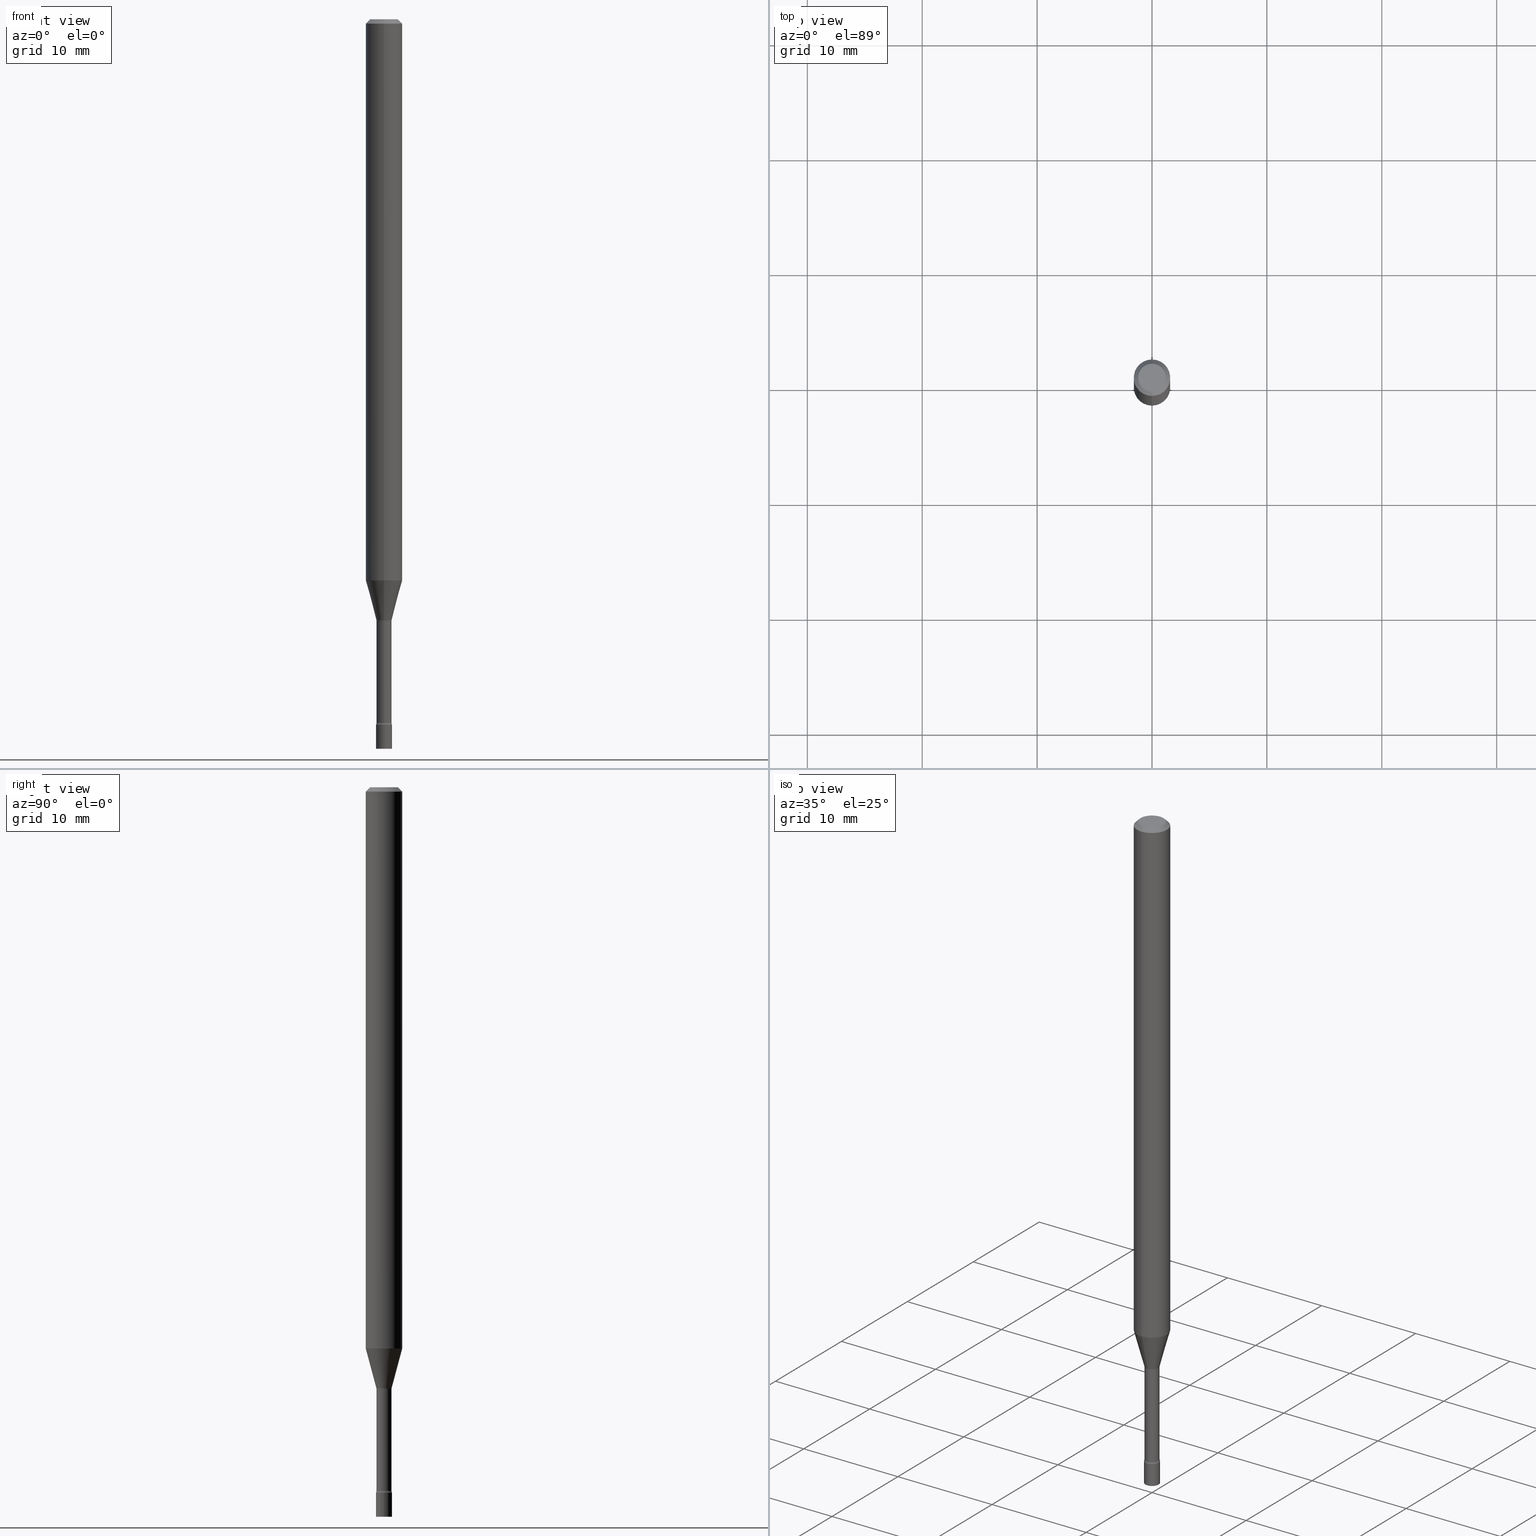
[diagram: canonical four-view strip — front | top / right | iso, engineering-drawing reading convention]
A machine part, canonical four-view strip (front | top / right | iso — engineering-drawing reading convention). The complete STEP part file that produces these views, byte-faithful:
ISO-10303-21;
HEADER;
FILE_DESCRIPTION (( 'STEP AP203' ),
    '1' );
FILE_NAME ('03573.STEP',
    '2024-03-08T21:53:19',
    ( '' ),
    ( '' ),
    'SwSTEP 2.0',
    'SolidWorks 2023',
    '' );
FILE_SCHEMA (( 'CONFIG_CONTROL_DESIGN' ));
ENDSEC;

DATA;
#1 = DESIGN_CONTEXT ( 'detailed design', #435, 'design' ) ;
#2 = CIRCLE ( 'NONE', #287, 0.06250000000000000000 ) ;
#3 = DIRECTION ( 'NONE',  ( -2.445418385667774846E-29, 3.491553543893765226E-15, 1.000000000000000000 ) ) ;
#4 = DATE_AND_TIME ( #207, #485 ) ;
#5 = CARTESIAN_POINT ( 'NONE',  ( 5.042495021882977278E-29, -7.199346491594957995E-15, -2.061974787463811243 ) ) ;
#6 = PERSON_AND_ORGANIZATION ( #206, #320 ) ;
#7 = CARTESIAN_POINT ( 'NONE',  ( -1.840786654675862271E-16, -0.02636111260567116504, -2.058092501787273321 ) ) ;
#8 = ORIENTED_EDGE ( 'NONE', *, *, #127, .T. ) ;
#9 =( GEOMETRIC_REPRESENTATION_CONTEXT ( 3 ) GLOBAL_UNCERTAINTY_ASSIGNED_CONTEXT ( ( #447 ) ) GLOBAL_UNIT_ASSIGNED_CONTEXT ( ( #282, #158, #119 ) ) REPRESENTATION_CONTEXT ( 'NONE', 'WORKASPACE' ) );
#10 = ADVANCED_FACE ( 'NONE', ( #391 ), #514, .F. ) ;
#11 = CARTESIAN_POINT ( 'NONE',  ( 5.042391056047406108E-29, -7.199495376588862482E-15, -2.061974787463811243 ) ) ;
#12 = VERTEX_POINT ( 'NONE', #313 ) ;
#13 = LINE ( 'NONE', #208, #419 ) ;
#14 = EDGE_LOOP ( 'NONE', ( #32, #369, #352, #139 ) ) ;
#15 = DIRECTION ( 'NONE',  ( -2.445468806185136877E-29, 3.491481338843145188E-15, 1.000000000000000000 ) ) ;
#16 = ORIENTED_EDGE ( 'NONE', *, *, #465, .F. ) ;
#17 = VECTOR ( 'NONE', #219, 39.37007874015748143 ) ;
#18 = CIRCLE ( 'NONE', #124, 0.06250000000000000000 ) ;
#19 = FACE_OUTER_BOUND ( 'NONE', #496, .T. ) ;
#20 = ORIENTED_EDGE ( 'NONE', *, *, #81, .T. ) ;
#21 = CARTESIAN_POINT ( 'NONE',  ( 0.000000000000000000, 0.000000000000000000, 0.000000000000000000 ) ) ;
#22 = VERTEX_POINT ( 'NONE', #192 ) ;
#23 = CYLINDRICAL_SURFACE ( 'NONE', #305, 0.02750000000000000014 ) ;
#24 = VERTEX_POINT ( 'NONE', #479 ) ;
#25 = MANIFOLD_SOLID_BREP ( 'Body-Move/Copy2[2]', #442 ) ;
#26 = AXIS2_PLACEMENT_3D ( 'NONE', #399, #406, #243 ) ;
#27 = CC_DESIGN_DATE_AND_TIME_ASSIGNMENT ( #327, #177, ( #125 ) ) ;
#28 = DIRECTION ( 'NONE',  ( -6.982962677686265922E-15, -1.000000000000000000, 3.491553543893765620E-15 ) ) ;
#29 = ORIENTED_EDGE ( 'NONE', *, *, #389, .F. ) ;
#30 = AXIS2_PLACEMENT_3D ( 'NONE', #132, #55, #288 ) ;
#31 = LINE ( 'NONE', #394, #103 ) ;
#32 = ORIENTED_EDGE ( 'NONE', *, *, #321, .F. ) ;
#33 = DIRECTION ( 'NONE',  ( -2.445418385667774846E-29, 3.491553543893765226E-15, 1.000000000000000000 ) ) ;
#34 = ORIENTED_EDGE ( 'NONE', *, *, #248, .F. ) ;
#35 = EDGE_CURVE ( 'NONE', #137, #108, #146, .T. ) ;
#36 = DIRECTION ( 'NONE',  ( -6.982962677686266711E-15, -1.000000000000000000, 0.000000000000000000 ) ) ;
#37 = CONICAL_SURFACE ( 'NONE', #328, 0.06250000000000000000, 0.7853981633974483900 ) ;
#38 = CARTESIAN_POINT ( 'NONE',  ( 0.000000000000000000, 0.000000000000000000, 0.000000000000000000 ) ) ;
#39 = DIRECTION ( 'NONE',  ( 6.982962677686265922E-15, 1.000000000000000000, -3.483106191921935554E-15 ) ) ;
#40 = ADVANCED_FACE ( 'NONE', ( #302 ), #84, .T. ) ;
#41 = DIRECTION ( 'NONE',  ( -2.445418385667774846E-29, 3.491553543893765226E-15, 1.000000000000000000 ) ) ;
#42 = DIRECTION ( 'NONE',  ( -2.445418385667774846E-29, 3.491553543893765226E-15, 1.000000000000000000 ) ) ;
#43 = DATE_AND_TIME ( #50, #315 ) ;
#44 = ADVANCED_FACE ( 'NONE', ( #426 ), #512, .F. ) ;
#45 = DIRECTION ( 'NONE',  ( -6.982962677686266711E-15, -1.000000000000000000, 0.000000000000000000 ) ) ;
#46 = AXIS2_PLACEMENT_3D ( 'NONE', #21, #189, #272 ) ;
#47 = CC_DESIGN_APPROVAL ( #274, ( #93 ) ) ;
#48 = DIMENSIONAL_EXPONENTS ( 1.000000000000000000, 0.000000000000000000, 0.000000000000000000, 0.000000000000000000, 0.000000000000000000, 0.000000000000000000, 0.000000000000000000 ) ;
#49 = DIRECTION ( 'NONE',  ( -6.982962677686265922E-15, -1.000000000000000000, 0.000000000000000000 ) ) ;
#50 = CALENDAR_DATE ( 2024, 8, 3 ) ;
#51 = DIRECTION ( 'NONE',  ( -6.982962677686265922E-15, -1.000000000000000000, 3.491553543893765620E-15 ) ) ;
#52 = DIRECTION ( 'NONE',  ( -2.445418385667774846E-29, 3.491553543893765226E-15, 1.000000000000000000 ) ) ;
#53 = VERTEX_POINT ( 'NONE', #87 ) ;
#54 = ADVANCED_FACE ( 'NONE', ( #306 ), #460, .T. ) ;
#55 = DIRECTION ( 'NONE',  ( 1.000000000000000000, -7.105427357601001070E-15, 4.926316392798923836E-29 ) ) ;
#56 = ORIENTED_EDGE ( 'NONE', *, *, #515, .T. ) ;
#57 = AXIS2_PLACEMENT_3D ( 'NONE', #88, #363, #91 ) ;
#58 = EDGE_CURVE ( 'NONE', #159, #436, #410, .T. ) ;
#59 = CIRCLE ( 'NONE', #26, 0.02585000000000002227 ) ;
#60 = COORDINATED_UNIVERSAL_TIME_OFFSET ( 5, 0, .BEHIND. ) ;
#61 = CARTESIAN_POINT ( 'NONE',  ( 1.920314736364334811E-16, 0.02749999999999127101, -2.500000000000000000 ) ) ;
#62 = ORIENTED_EDGE ( 'NONE', *, *, #321, .T. ) ;
#63 = CARTESIAN_POINT ( 'NONE',  ( 5.032897243275585595E-29, -7.185940168276538643E-15, -2.058092501787273321 ) ) ;
#64 = EDGE_LOOP ( 'NONE', ( #294, #376, #181, #511 ) ) ;
#65 = LINE ( 'NONE', #505, #383 ) ;
#66 = ADVANCED_FACE ( 'NONE', ( #283 ), #407, .T. ) ;
#67 = AXIS2_PLACEMENT_3D ( 'NONE', #513, #264, #461 ) ;
#68 = AXIS2_PLACEMENT_3D ( 'NONE', #518, #279, #200 ) ;
#69 = PLANE ( 'NONE',  #239 ) ;
#70 = CARTESIAN_POINT ( 'NONE',  ( 3.316907271900976096E-16, 0.04749999999999999362, -1.803040339289361158E-16 ) ) ;
#71 = EDGE_CURVE ( 'NONE', #137, #179, #281, .T. ) ;
#72 = DIRECTION ( 'NONE',  ( 1.000000000000000000, -6.982962677686265922E-15, 4.876176775795935793E-29 ) ) ;
#73 = DIRECTION ( 'NONE',  ( -6.982962677686265922E-15, -1.000000000000000000, 0.000000000000000000 ) ) ;
#74 = ADVANCED_FACE ( 'NONE', ( #487 ), #247, .F. ) ;
#75 = CARTESIAN_POINT ( 'NONE',  ( 5.893972545952798109E-29, -8.415030731040159309E-15, -2.410160592130893509 ) ) ;
#76 = VERTEX_POINT ( 'NONE', #501 ) ;
#77 = CARTESIAN_POINT ( 'NONE',  ( 5.910698104549475684E-29, -8.438910395983882728E-15, -2.417000000000000259 ) ) ;
#78 = ORIENTED_EDGE ( 'NONE', *, *, #500, .F. ) ;
#79 = CIRCLE ( 'NONE', #67, 0.02750000000000000014 ) ;
#80 = ORIENTED_EDGE ( 'NONE', *, *, #147, .T. ) ;
#81 = EDGE_CURVE ( 'NONE', #108, #22, #193, .T. ) ;
#82 = DIRECTION ( 'NONE',  ( 1.000000000000000000, -6.982962677686279332E-15, 0.000000000000000000 ) ) ;
#83 = DIRECTION ( 'NONE',  ( -6.982962677686266711E-15, -1.000000000000000000, 3.491553543893765226E-15 ) ) ;
#84 = CONICAL_SURFACE ( 'NONE', #481, 0.02636111260566398329, 0.2617993877991496854 ) ;
#85 = APPROVAL_PERSON_ORGANIZATION ( #134, #212, #246 ) ;
#86 = CARTESIAN_POINT ( 'NONE',  ( 4.440892098500625669E-16, 0.06250000000000000000, -2.182220964933603019E-16 ) ) ;
#87 = CARTESIAN_POINT ( 'NONE',  ( 3.156980902676227691E-16, 0.02636111260565679806, -2.058092501787273321 ) ) ;
#88 = CARTESIAN_POINT ( 'NONE',  ( -2.852540253834252668E-16, -0.04085000000000845594, -2.410160592130893065 ) ) ;
#89 = ADVANCED_FACE ( 'NONE', ( #325 ), #232, .F. ) ;
#90 = PERSON_AND_ORGANIZATION_ROLE ( 'classification_officer' ) ;
#91 = DIRECTION ( 'NONE',  ( -6.982962677686267499E-15, -1.000000000000000000, 0.000000000000000000 ) ) ;
#92 = CONICAL_SURFACE ( 'NONE', #297, 0.02636111260566398329, 0.2617993877991496854 ) ;
#93 = PRODUCT_DEFINITION_FORMATION_WITH_SPECIFIED_SOURCE ( 'ANY', '', #120, .NOT_KNOWN. ) ;
#94 = APPROVAL_ROLE ( '' ) ;
#95 = ORIENTED_EDGE ( 'NONE', *, *, #147, .F. ) ;
#96 = ADVANCED_FACE ( 'NONE', ( #495 ), #253, .T. ) ;
#97 = CALENDAR_DATE ( 2024, 8, 3 ) ;
#98 = CARTESIAN_POINT ( 'NONE',  ( 7.069822223555091707E-46, -1.009424930475117425E-31, -2.891048118796457995E-17 ) ) ;
#99 = ORIENTED_EDGE ( 'NONE', *, *, #446, .F. ) ;
#100 = DATE_TIME_ROLE ( 'classification_date' ) ;
#101 = DIRECTION ( 'NONE',  ( -2.445418385667774846E-29, 3.491553543893765226E-15, 1.000000000000000000 ) ) ;
#102 = ORIENTED_EDGE ( 'NONE', *, *, #227, .T. ) ;
#103 = VECTOR ( 'NONE', #162, 39.37007874015748854 ) ;
#104 = DIRECTION ( 'NONE',  ( -1.000000000000000000, 6.982962677686265922E-15, -4.876176775795935793E-29 ) ) ;
#105 = DIRECTION ( 'NONE',  ( -2.445418385667774846E-29, 3.491553543893765226E-15, 1.000000000000000000 ) ) ;
#106 = ORIENTED_EDGE ( 'NONE', *, *, #519, .F. ) ;
#107 = CARTESIAN_POINT ( 'NONE',  ( 6.113672015462842613E-29, -8.728703347107864943E-15, -2.500000000000000000 ) ) ;
#108 = VERTEX_POINT ( 'NONE', #140 ) ;
#109 = AXIS2_PLACEMENT_3D ( 'NONE', #455, #180, #285 ) ;
#110 = LOCAL_TIME ( 16, 53, 19.00000000000000000, #252 ) ;
#111 = DIRECTION ( 'NONE',  ( 1.000000000000000000, -6.982962677686244622E-15, 0.000000000000000000 ) ) ;
#112 = ORIENTED_EDGE ( 'NONE', *, *, #155, .F. ) ;
#113 = ORIENTED_EDGE ( 'NONE', *, *, #71, .F. ) ;
#114 = ORIENTED_EDGE ( 'NONE', *, *, #202, .T. ) ;
#115 = CARTESIAN_POINT ( 'NONE',  ( 5.032897243275585595E-29, -7.185940168276538643E-15, -2.058092501787273321 ) ) ;
#116 = CARTESIAN_POINT ( 'NONE',  ( -1.805095852181900511E-16, -0.02585000000000001186, 9.025665910965387354E-17 ) ) ;
#117 = AXIS2_PLACEMENT_3D ( 'NONE', #77, #318, #82 ) ;
#118 = PRODUCT_RELATED_PRODUCT_CATEGORY ( 'detail', '', ( #120 ) ) ;
#119 =( NAMED_UNIT ( * ) SI_UNIT ( $, .STERADIAN. ) SOLID_ANGLE_UNIT ( ) );
#120 = PRODUCT ( '03573', '03573', '', ( #360 ) ) ;
#121 = DIRECTION ( 'NONE',  ( -2.445418385667774846E-29, 3.491553543893765226E-15, 1.000000000000000000 ) ) ;
#122 = LENGTH_MEASURE_WITH_UNIT ( LENGTH_MEASURE( 0.02539999999999999897 ), #280 );
#123 = CIRCLE ( 'NONE', #502, 0.02636111260566398329 ) ;
#124 = AXIS2_PLACEMENT_3D ( 'NONE', #354, #41, #356 ) ;
#125 = PRODUCT_DEFINITION ( 'UNKNOWN', '', #93, #1 ) ;
#126 = APPROVAL_DATE_TIME ( #416, #274 ) ;
#127 = EDGE_CURVE ( 'NONE', #53, #223, #123, .T. ) ;
#128 = COORDINATED_UNIVERSAL_TIME_OFFSET ( 5, 0, .BEHIND. ) ;
#129 = FACE_OUTER_BOUND ( 'NONE', #343, .T. ) ;
#130 = EDGE_CURVE ( 'NONE', #137, #235, #470, .T. ) ;
#131 = SECURITY_CLASSIFICATION_LEVEL ( 'unclassified' ) ;
#132 = CARTESIAN_POINT ( 'NONE',  ( 2.902567075580512468E-16, 0.04084999999999280179, -2.061974787463811243 ) ) ;
#133 = CIRCLE ( 'NONE', #427, 0.06250000000000000000 ) ;
#134 = PERSON_AND_ORGANIZATION ( #206, #320 ) ;
#135 = ADVANCED_FACE ( 'NONE', ( #129 ), #37, .T. ) ;
#136 = CARTESIAN_POINT ( 'NONE',  ( -1.805095852181311823E-16, -0.02585000000000843567, -2.410160592130893509 ) ) ;
#137 = VERTEX_POINT ( 'NONE', #136 ) ;
#138 = CARTESIAN_POINT ( 'NONE',  ( -4.364351673553447815E-16, -0.06250000000000673073, -1.923220337902600718 ) ) ;
#139 = ORIENTED_EDGE ( 'NONE', *, *, #428, .F. ) ;
#140 = CARTESIAN_POINT ( 'NONE',  ( -1.805095852181395393E-16, -0.02585000000000720402, -2.061974787463811243 ) ) ;
#141 = CC_DESIGN_PERSON_AND_ORGANIZATION_ASSIGNMENT ( #364, #413, ( #93 ) ) ;
#142 = AXIS2_PLACEMENT_3D ( 'NONE', #472, #396, #39 ) ;
#143 = AXIS2_PLACEMENT_3D ( 'NONE', #347, #510, #307 ) ;
#144 = CARTESIAN_POINT ( 'NONE',  ( 1.836752971939859576E-16, 0.02585000000000001186, -9.025665910965387354E-17 ) ) ;
#145 = CYLINDRICAL_SURFACE ( 'NONE', #164, 0.02750000000000000014 ) ;
#146 = LINE ( 'NONE', #116, #150 ) ;
#147 = EDGE_CURVE ( 'NONE', #12, #235, #349, .T. ) ;
#148 = FACE_OUTER_BOUND ( 'NONE', #14, .T. ) ;
#149 = ORIENTED_EDGE ( 'NONE', *, *, #386, .T. ) ;
#150 = VECTOR ( 'NONE', #278, 39.37007874015748143 ) ;
#151 = AXIS2_PLACEMENT_3D ( 'NONE', #449, #420, #45 ) ;
#152 = CC_DESIGN_APPROVAL ( #212, ( #176 ) ) ;
#153 = CARTESIAN_POINT ( 'NONE',  ( 0.02750000000000000014, -1.920314736363723444E-16, 1.340948613343882413E-30 ) ) ;
#154 = VERTEX_POINT ( 'NONE', #414 ) ;
#155 = EDGE_CURVE ( 'NONE', #157, #273, #13, .T. ) ;
#156 = CARTESIAN_POINT ( 'NONE',  ( 0.000000000000000000, 0.000000000000000000, 0.000000000000000000 ) ) ;
#157 = VERTEX_POINT ( 'NONE', #138 ) ;
#158 =( NAMED_UNIT ( * ) PLANE_ANGLE_UNIT ( ) SI_UNIT ( $, .RADIAN. ) );
#159 = VERTEX_POINT ( 'NONE', #290 ) ;
#160 = EDGE_CURVE ( 'NONE', #273, #388, #133, .T. ) ;
#161 = AXIS2_PLACEMENT_3D ( 'NONE', #70, #308, #430 ) ;
#162 = DIRECTION ( 'NONE',  ( -1.807323732225326195E-15, -0.2588190451025176309, 0.9659258262890690894 ) ) ;
#163 = CARTESIAN_POINT ( 'NONE',  ( -4.287811248607203282E-16, -0.06250000000000005551, -0.01499999999999981209 ) ) ;
#164 = AXIS2_PLACEMENT_3D ( 'NONE', #156, #220, #463 ) ;
#165 = EDGE_CURVE ( 'NONE', #223, #108, #492, .T. ) ;
#166 = AXIS2_PLACEMENT_3D ( 'NONE', #38, #440, #475 ) ;
#167 = PRODUCT_DEFINITION_SHAPE ( 'NONE', 'NONE',  #125 ) ;
#168 = CARTESIAN_POINT ( 'NONE',  ( 3.668127578501669485E-31, -5.237330315840658710E-17, -0.01500000000000003067 ) ) ;
#169 = ADVANCED_BREP_SHAPE_REPRESENTATION ( '03573', ( #377, #25, #68 ), #9 ) ;
#170 = CARTESIAN_POINT ( 'NONE',  ( 0.000000000000000000, 0.000000000000000000, 0.000000000000000000 ) ) ;
#171 = EDGE_CURVE ( 'NONE', #53, #216, #335, .T. ) ;
#172 = CALENDAR_DATE ( 2024, 8, 3 ) ;
#173 = DIRECTION ( 'NONE',  ( 2.445418385667774846E-29, -3.491553543893765226E-15, -1.000000000000000000 ) ) ;
#174 = ORIENTED_EDGE ( 'NONE', *, *, #188, .F. ) ;
#175 = AXIS2_PLACEMENT_3D ( 'NONE', #98, #256, #293 ) ;
#176 = SECURITY_CLASSIFICATION ( '', '', #131 ) ;
#177 = DATE_TIME_ROLE ( 'creation_date' ) ;
#178 = CARTESIAN_POINT ( 'NONE',  ( 4.703078373997210395E-29, -6.715026786492391086E-15, -1.923220337902600940 ) ) ;
#179 = VERTEX_POINT ( 'NONE', #365 ) ;
#180 = DIRECTION ( 'NONE',  ( -1.000000000000000000, 6.982962677686265922E-15, -4.883557194083112340E-29 ) ) ;
#181 = ORIENTED_EDGE ( 'NONE', *, *, #81, .F. ) ;
#182 = DIRECTION ( 'NONE',  ( -2.445468806185136877E-29, 3.491481338843145188E-15, 1.000000000000000000 ) ) ;
#183 = ORIENTED_EDGE ( 'NONE', *, *, #500, .T. ) ;
#184 = CIRCLE ( 'NONE', #175, 0.04749999999999999362 ) ;
#185 = AXIS2_PLACEMENT_3D ( 'NONE', #317, #240, #234 ) ;
#186 = FACE_OUTER_BOUND ( 'NONE', #214, .T. ) ;
#187 = EDGE_LOOP ( 'NONE', ( #517, #254, #395, #183 ) ) ;
#188 = EDGE_CURVE ( 'NONE', #157, #216, #2, .T. ) ;
#189 = DIRECTION ( 'NONE',  ( -2.445418385667774846E-29, 3.491553543893765226E-15, 1.000000000000000000 ) ) ;
#190 = EDGE_LOOP ( 'NONE', ( #491, #29 ) ) ;
#191 = CARTESIAN_POINT ( 'NONE',  ( 4.440892098501099478E-16, 0.06249999999999995143, -0.01500000000000024751 ) ) ;
#192 = CARTESIAN_POINT ( 'NONE',  ( 1.836752971940449250E-16, 0.02584999999999280235, -2.061974787463811243 ) ) ;
#193 = CIRCLE ( 'NONE', #484, 0.02585000000000000492 ) ;
#194 = AXIS2_PLACEMENT_3D ( 'NONE', #437, #478, #237 ) ;
#195 = DIRECTION ( 'NONE',  ( -2.445468806185136597E-29, 3.491481338843145583E-15, 1.000000000000000000 ) ) ;
#196 = EDGE_LOOP ( 'NONE', ( #236, #113, #338, #504 ) ) ;
#197 = LINE ( 'NONE', #163, #471 ) ;
#198 = ORIENTED_EDGE ( 'NONE', *, *, #58, .T. ) ;
#199 = DIRECTION ( 'NONE',  ( -6.982962677686265133E-15, -1.000000000000000000, 0.000000000000000000 ) ) ;
#200 = DIRECTION ( 'NONE',  ( 1.000000000000000000, 0.000000000000000000, 0.000000000000000000 ) ) ;
#201 = AXIS2_PLACEMENT_3D ( 'NONE', #115, #121, #203 ) ;
#202 = EDGE_CURVE ( 'NONE', #53, #22, #480, .T. ) ;
#203 = DIRECTION ( 'NONE',  ( -6.982962677686265922E-15, -1.000000000000000000, 0.000000000000000000 ) ) ;
#204 = DIRECTION ( 'NONE',  ( -2.445418385667774846E-29, 3.491553543893765226E-15, 1.000000000000000000 ) ) ;
#205 = DIRECTION ( 'NONE',  ( -2.445418385667774846E-29, 3.491553543893765226E-15, 1.000000000000000000 ) ) ;
#206 = PERSON ( 'UNSPECIFIED', 'UNSPECIFIED', 'UNSPECIFIED', ('UNSPECIFIED'), ('UNSPECIFIED'), ('UNSPECIFIED') ) ;
#207 = CALENDAR_DATE ( 2024, 8, 3 ) ;
#208 = CARTESIAN_POINT ( 'NONE',  ( -4.364351673553916201E-16, -0.06250000000000000000, 2.182220964933603019E-16 ) ) ;
#209 = VECTOR ( 'NONE', #182, 39.37007874015748143 ) ;
#210 = APPROVAL_DATE_TIME ( #43, #366 ) ;
#211 = DIRECTION ( 'NONE',  ( -2.445418385667774846E-29, 3.491553543893765226E-15, 1.000000000000000000 ) ) ;
#212 = APPROVAL ( #286, 'UNSPECIFIED' ) ;
#213 = PERSON_AND_ORGANIZATION ( #206, #320 ) ;
#214 = EDGE_LOOP ( 'NONE', ( #348, #62, #299, #345 ) ) ;
#215 = CARTESIAN_POINT ( 'NONE',  ( 5.893972545952798109E-29, -8.415030731040159309E-15, -2.410160592130893509 ) ) ;
#216 = VERTEX_POINT ( 'NONE', #452 ) ;
#217 = VECTOR ( 'NONE', #105, 39.37007874015748143 ) ;
#218 = COORDINATED_UNIVERSAL_TIME_OFFSET ( 5, 0, .BEHIND. ) ;
#219 = DIRECTION ( 'NONE',  ( 1.839019923739596371E-15, 0.2588190451025244032, 0.9659258262890673130 ) ) ;
#220 = DIRECTION ( 'NONE',  ( -2.445468806185136597E-29, 3.491481338843145583E-15, 1.000000000000000000 ) ) ;
#221 = EDGE_LOOP ( 'NONE', ( #432, #509, #174, #16 ) ) ;
#222 = DIRECTION ( 'NONE',  ( -2.445418385667774565E-29, 3.491553543893765226E-15, 1.000000000000000000 ) ) ;
#223 = VERTEX_POINT ( 'NONE', #7 ) ;
#224 = AXIS2_PLACEMENT_3D ( 'NONE', #344, #508, #387 ) ;
#225 = CYLINDRICAL_SURFACE ( 'NONE', #46, 0.06250000000000000000 ) ;
#226 = EDGE_LOOP ( 'NONE', ( #499, #114, #304, #331 ) ) ;
#227 = EDGE_CURVE ( 'NONE', #436, #159, #184, .T. ) ;
#228 = CARTESIAN_POINT ( 'NONE',  ( -4.364351673553912750E-16, -0.06250000000000005551, -0.01499999999999981209 ) ) ;
#229 = ORIENTED_EDGE ( 'NONE', *, *, #202, .F. ) ;
#230 = DIRECTION ( 'NONE',  ( -2.445418385667774846E-29, 3.491553543893765226E-15, 1.000000000000000000 ) ) ;
#231 = ORIENTED_EDGE ( 'NONE', *, *, #130, .F. ) ;
#232 = TOROIDAL_SURFACE ( 'NONE', #434, 0.04085000000000003906, 0.01500000000000001853 ) ;
#233 = ADVANCED_FACE ( 'NONE', ( #457 ), #260, .T. ) ;
#234 = DIRECTION ( 'NONE',  ( -6.982962677686265922E-15, -1.000000000000000000, 3.483106191921935554E-15 ) ) ;
#235 = VERTEX_POINT ( 'NONE', #421 ) ;
#236 = ORIENTED_EDGE ( 'NONE', *, *, #386, .F. ) ;
#237 = DIRECTION ( 'NONE',  ( -6.982962677686264344E-15, -1.000000000000000000, 0.000000000000000000 ) ) ;
#238 = EDGE_CURVE ( 'NONE', #179, #22, #303, .T. ) ;
#239 = AXIS2_PLACEMENT_3D ( 'NONE', #270, #222, #429 ) ;
#240 = DIRECTION ( 'NONE',  ( -2.445418385667774846E-29, 3.491553543893765226E-15, 1.000000000000000000 ) ) ;
#241 = LOCAL_TIME ( 16, 53, 19.00000000000000000, #454 ) ;
#242 = CARTESIAN_POINT ( 'NONE',  ( 0.000000000000000000, 0.000000000000000000, 0.000000000000000000 ) ) ;
#243 = DIRECTION ( 'NONE',  ( -6.982962677686265133E-15, -1.000000000000000000, 0.000000000000000000 ) ) ;
#244 = PERSON_AND_ORGANIZATION ( #206, #320 ) ;
#245 = DIRECTION ( 'NONE',  ( -2.445418385667774846E-29, 3.491553543893765226E-15, 1.000000000000000000 ) ) ;
#246 = APPROVAL_ROLE ( '' ) ;
#247 = TOROIDAL_SURFACE ( 'NONE', #371, 0.04084999999999999742, 0.01500000000000001853 ) ;
#248 = EDGE_CURVE ( 'NONE', #436, #388, #423, .T. ) ;
#249 = CARTESIAN_POINT ( 'NONE',  ( 1.873069706851357876E-16, 0.02636111260565679806, -2.058092501787273321 ) ) ;
#250 = CIRCLE ( 'NONE', #185, 0.06250000000000000000 ) ;
#251 = TOROIDAL_SURFACE ( 'NONE', #493, 0.04085000000000003906, 0.01500000000000001853 ) ;
#252 = COORDINATED_UNIVERSAL_TIME_OFFSET ( 5, 0, .BEHIND. ) ;
#253 = CYLINDRICAL_SURFACE ( 'NONE', #262, 0.06250000000000000000 ) ;
#254 = ORIENTED_EDGE ( 'NONE', *, *, #227, .F. ) ;
#255 = DATE_AND_TIME ( #97, #241 ) ;
#256 = DIRECTION ( 'NONE',  ( -2.445418385667774846E-29, 3.491553543893765226E-15, 1.000000000000000000 ) ) ;
#257 = ORIENTED_EDGE ( 'NONE', *, *, #165, .T. ) ;
#258 = ADVANCED_FACE ( 'NONE', ( #186 ), #145, .T. ) ;
#259 = SHAPE_DEFINITION_REPRESENTATION ( #167, #169 ) ;
#260 = PLANE ( 'NONE',  #319 ) ;
#261 = ORIENTED_EDGE ( 'NONE', *, *, #155, .T. ) ;
#262 = AXIS2_PLACEMENT_3D ( 'NONE', #170, #211, #498 ) ;
#263 = LINE ( 'NONE', #153, #209 ) ;
#264 = DIRECTION ( 'NONE',  ( -2.445468806185136597E-29, 3.491481338843145583E-15, 1.000000000000000000 ) ) ;
#265 = ORIENTED_EDGE ( 'NONE', *, *, #488, .F. ) ;
#266 = DIRECTION ( 'NONE',  ( 1.000000000000000000, -6.982962677686266711E-15, 4.876176775795935793E-29 ) ) ;
#267 = DIRECTION ( 'NONE',  ( -2.445418385667774846E-29, 3.491553543893765226E-15, 1.000000000000000000 ) ) ;
#268 = AXIS2_PLACEMENT_3D ( 'NONE', #242, #42, #486 ) ;
#269 = AXIS2_PLACEMENT_3D ( 'NONE', #431, #445, #36 ) ;
#270 = CARTESIAN_POINT ( 'NONE',  ( 1.920314736364314350E-16, 0.02749999999999156244, -2.417000000000000259 ) ) ;
#271 = EDGE_LOOP ( 'NONE', ( #355, #433, #382, #112 ) ) ;
#272 = DIRECTION ( 'NONE',  ( -6.982962677686265922E-15, -1.000000000000000000, 3.491553543893764831E-15 ) ) ;
#273 = VERTEX_POINT ( 'NONE', #228 ) ;
#274 = APPROVAL ( #324, 'UNSPECIFIED' ) ;
#275 = ORIENTED_EDGE ( 'NONE', *, *, #238, .F. ) ;
#276 = CIRCLE ( 'NONE', #224, 0.01500000000000001853 ) ;
#277 = DIRECTION ( 'NONE',  ( -4.851104656540964275E-15, -0.7071067811865500152, -0.7071067811865450192 ) ) ;
#278 = DIRECTION ( 'NONE',  ( -2.445418385667774846E-29, 3.491553543893765226E-15, 1.000000000000000000 ) ) ;
#279 = DIRECTION ( 'NONE',  ( 0.000000000000000000, 0.000000000000000000, 1.000000000000000000 ) ) ;
#280 =( LENGTH_UNIT ( ) NAMED_UNIT ( * ) SI_UNIT ( $, .METRE. ) );
#281 = CIRCLE ( 'NONE', #401, 0.02585000000000002227 ) ;
#282 =( CONVERSION_BASED_UNIT ( 'INCH', #122 ) LENGTH_UNIT ( ) NAMED_UNIT ( #48 ) );
#283 = FACE_OUTER_BOUND ( 'NONE', #64, .T. ) ;
#284 = PERSON_AND_ORGANIZATION ( #206, #320 ) ;
#285 = DIRECTION ( 'NONE',  ( -6.982962677686267499E-15, -1.000000000000000000, 0.000000000000000000 ) ) ;
#286 = APPROVAL_STATUS ( 'not_yet_approved' ) ;
#287 = AXIS2_PLACEMENT_3D ( 'NONE', #178, #101, #368 ) ;
#288 = DIRECTION ( 'NONE',  ( 7.105427357601001859E-15, 1.000000000000000000, 0.000000000000000000 ) ) ;
#289 = EDGE_LOOP ( 'NONE', ( #379, #374 ) ) ;
#290 = CARTESIAN_POINT ( 'NONE',  ( -3.773273898774340269E-16, -0.04749999999999999362, 1.369383121469892520E-16 ) ) ;
#291 = EDGE_LOOP ( 'NONE', ( #275, #506, #397, #99 ) ) ;
#292 = EDGE_CURVE ( 'NONE', #476, #76, #443, .T. ) ;
#293 = DIRECTION ( 'NONE',  ( -6.982962677686266711E-15, -1.000000000000000000, 3.491553543893765226E-15 ) ) ;
#294 = ORIENTED_EDGE ( 'NONE', *, *, #71, .T. ) ;
#295 = EDGE_CURVE ( 'NONE', #476, #24, #263, .T. ) ;
#296 = DIRECTION ( 'NONE',  ( -2.445418385667774846E-29, 3.491553543893765226E-15, 1.000000000000000000 ) ) ;
#297 = AXIS2_PLACEMENT_3D ( 'NONE', #63, #468, #342 ) ;
#298 = DIRECTION ( 'NONE',  ( -2.438088387897960049E-29, 3.491481338843145188E-15, 1.000000000000000000 ) ) ;
#299 = ORIENTED_EDGE ( 'NONE', *, *, #311, .F. ) ;
#300 = CC_DESIGN_PERSON_AND_ORGANIZATION_ASSIGNMENT ( #244, #489, ( #120 ) ) ;
#301 = CARTESIAN_POINT ( 'NONE',  ( 4.364351673553919652E-16, 0.06249999999999995143, -0.01500000000000024751 ) ) ;
#302 = FACE_OUTER_BOUND ( 'NONE', #221, .T. ) ;
#303 = LINE ( 'NONE', #144, #217 ) ;
#304 = ORIENTED_EDGE ( 'NONE', *, *, #446, .T. ) ;
#305 = AXIS2_PLACEMENT_3D ( 'NONE', #466, #378, #266 ) ;
#306 = FACE_OUTER_BOUND ( 'NONE', #187, .T. ) ;
#307 = DIRECTION ( 'NONE',  ( 1.000000000000000000, -6.982962677686244622E-15, 0.000000000000000000 ) ) ;
#308 = DIRECTION ( 'NONE',  ( 2.445418385667774565E-29, -3.491553543893765226E-15, -1.000000000000000000 ) ) ;
#309 = ADVANCED_FACE ( 'NONE', ( #19 ), #92, .T. ) ;
#310 = EDGE_LOOP ( 'NONE', ( #229, #106, #257, #20 ) ) ;
#311 = EDGE_CURVE ( 'NONE', #24, #154, #79, .T. ) ;
#312 = CARTESIAN_POINT ( 'NONE',  ( 3.840629472727447874E-16, 0.04749999999999999362, -1.947592745229184119E-16 ) ) ;
#313 = CARTESIAN_POINT ( 'NONE',  ( 1.953992523340867906E-16, 0.02749999999999157979, -2.417000000000000259 ) ) ;
#314 = VECTOR ( 'NONE', #425, 39.37007874015748143 ) ;
#315 = LOCAL_TIME ( 16, 53, 19.00000000000000000, #128 ) ;
#316 = CARTESIAN_POINT ( 'NONE',  ( 5.042495021882977278E-29, -7.199346491594957995E-15, -2.061974787463811243 ) ) ;
#317 = CARTESIAN_POINT ( 'NONE',  ( 3.668127578501669485E-31, -5.237330315840658710E-17, -0.01500000000000003067 ) ) ;
#318 = DIRECTION ( 'NONE',  ( -2.445468806185136597E-29, 3.491481338843145583E-15, 1.000000000000000000 ) ) ;
#319 = AXIS2_PLACEMENT_3D ( 'NONE', #61, #351, #104 ) ;
#320 = ORGANIZATION ( 'UNSPECIFIED', 'UNSPECIFIED', '' ) ;
#321 = EDGE_CURVE ( 'NONE', #76, #154, #65, .T. ) ;
#322 = CALENDAR_DATE ( 2024, 8, 3 ) ;
#323 = DIRECTION ( 'NONE',  ( -2.445418385667774846E-29, 3.491553543893765226E-15, 1.000000000000000000 ) ) ;
#324 = APPROVAL_STATUS ( 'not_yet_approved' ) ;
#325 = FACE_OUTER_BOUND ( 'NONE', #196, .T. ) ;
#326 = ADVANCED_FACE ( 'NONE', ( #148 ), #23, .T. ) ;
#327 = DATE_AND_TIME ( #172, #110 ) ;
#328 = AXIS2_PLACEMENT_3D ( 'NONE', #329, #173, #409 ) ;
#329 = CARTESIAN_POINT ( 'NONE',  ( 3.668127578501669485E-31, -5.237330315840658710E-17, -0.01500000000000003067 ) ) ;
#330 = APPROVAL_PERSON_ORGANIZATION ( #6, #366, #94 ) ;
#331 = ORIENTED_EDGE ( 'NONE', *, *, #165, .F. ) ;
#332 = APPROVAL_ROLE ( '' ) ;
#333 = DIRECTION ( 'NONE',  ( -6.982962677686264344E-15, -1.000000000000000000, 0.000000000000000000 ) ) ;
#334 = EDGE_LOOP ( 'NONE', ( #102, #198 ) ) ;
#335 = LINE ( 'NONE', #249, #17 ) ;
#336 = ORIENTED_EDGE ( 'NONE', *, *, #171, .F. ) ;
#337 = FACE_OUTER_BOUND ( 'NONE', #289, .T. ) ;
#338 = ORIENTED_EDGE ( 'NONE', *, *, #130, .T. ) ;
#339 = AXIS2_PLACEMENT_3D ( 'NONE', #439, #33, #83 ) ;
#340 = CC_DESIGN_APPROVAL ( #366, ( #125 ) ) ;
#341 = ADVANCED_FACE ( 'NONE', ( #390 ), #69, .F. ) ;
#342 = DIRECTION ( 'NONE',  ( -6.982962677686265922E-15, -1.000000000000000000, 0.000000000000000000 ) ) ;
#343 = EDGE_LOOP ( 'NONE', ( #474, #464, #418, #34 ) ) ;
#344 = CARTESIAN_POINT ( 'NONE',  ( 2.902567075580601215E-16, 0.04084999999999162218, -2.410160592130893509 ) ) ;
#345 = ORIENTED_EDGE ( 'NONE', *, *, #295, .F. ) ;
#346 = ADVANCED_FACE ( 'NONE', ( #337 ), #384, .T. ) ;
#347 = CARTESIAN_POINT ( 'NONE',  ( 6.113672015462842613E-29, -8.728703347107864943E-15, -2.500000000000000000 ) ) ;
#348 = ORIENTED_EDGE ( 'NONE', *, *, #292, .T. ) ;
#349 = CIRCLE ( 'NONE', #151, 0.02750000000000000014 ) ;
#350 = VECTOR ( 'NONE', #204, 39.37007874015748143 ) ;
#351 = DIRECTION ( 'NONE',  ( 2.438088387897960049E-29, -3.491481338843145188E-15, -1.000000000000000000 ) ) ;
#352 = ORIENTED_EDGE ( 'NONE', *, *, #295, .T. ) ;
#353 = ADVANCED_FACE ( 'NONE', ( #503 ), #225, .T. ) ;
#354 = CARTESIAN_POINT ( 'NONE',  ( 4.703078373997210395E-29, -6.715026786492391086E-15, -1.923220337902600940 ) ) ;
#355 = ORIENTED_EDGE ( 'NONE', *, *, #188, .T. ) ;
#356 = DIRECTION ( 'NONE',  ( -6.982962677686265922E-15, -1.000000000000000000, 4.370956789862821150E-15 ) ) ;
#357 = AXIS2_PLACEMENT_3D ( 'NONE', #316, #400, #51 ) ;
#358 = CIRCLE ( 'NONE', #269, 0.02750000000000000014 ) ;
#359 = APPLICATION_PROTOCOL_DEFINITION ( 'international standard', 'config_control_design', 1994, #441 ) ;
#360 = MECHANICAL_CONTEXT ( 'NONE', #441, 'mechanical' ) ;
#361 = AXIS2_PLACEMENT_3D ( 'NONE', #381, #298, #72 ) ;
#362 = APPROVAL_STATUS ( 'not_yet_approved' ) ;
#363 = DIRECTION ( 'NONE',  ( -1.000000000000000000, 6.982962677686265922E-15, -4.883557194083112340E-29 ) ) ;
#364 = PERSON_AND_ORGANIZATION ( #206, #320 ) ;
#365 = CARTESIAN_POINT ( 'NONE',  ( 1.895372747640659194E-16, 0.02584999999999160886, -2.410160592130893509 ) ) ;
#366 = APPROVAL ( #362, 'UNSPECIFIED' ) ;
#367 = PERSON_AND_ORGANIZATION_ROLE ( 'creator' ) ;
#368 = DIRECTION ( 'NONE',  ( -6.982962677686265922E-15, -1.000000000000000000, 4.370956789862821150E-15 ) ) ;
#369 = ORIENTED_EDGE ( 'NONE', *, *, #389, .T. ) ;
#370 = CLOSED_SHELL ( 'NONE', ( #258, #346, #326, #233 ) ) ;
#371 = AXIS2_PLACEMENT_3D ( 'NONE', #5, #412, #417 ) ;
#372 = DIRECTION ( 'NONE',  ( -6.982962677686265922E-15, -1.000000000000000000, 3.491553543893765620E-15 ) ) ;
#373 = CIRCLE ( 'NONE', #201, 0.02636111260566398329 ) ;
#374 = ORIENTED_EDGE ( 'NONE', *, *, #428, .T. ) ;
#375 = CARTESIAN_POINT ( 'NONE',  ( 5.032897243275585595E-29, -7.185940168276538643E-15, -2.058092501787273321 ) ) ;
#376 = ORIENTED_EDGE ( 'NONE', *, *, #238, .T. ) ;
#377 = MANIFOLD_SOLID_BREP ( 'Body-Move/Copy2[1]', #370 ) ;
#378 = DIRECTION ( 'NONE',  ( -2.445468806185136597E-29, 3.491481338843145583E-15, 1.000000000000000000 ) ) ;
#379 = ORIENTED_EDGE ( 'NONE', *, *, #311, .T. ) ;
#380 = CC_DESIGN_PERSON_AND_ORGANIZATION_ASSIGNMENT ( #213, #90, ( #176 ) ) ;
#381 = CARTESIAN_POINT ( 'NONE',  ( 5.910698104549475684E-29, -8.438910395983882728E-15, -2.417000000000000259 ) ) ;
#382 = ORIENTED_EDGE ( 'NONE', *, *, #160, .F. ) ;
#383 = VECTOR ( 'NONE', #15, 39.37007874015748143 ) ;
#384 = PLANE ( 'NONE',  #361 ) ;
#385 = EDGE_LOOP ( 'NONE', ( #453, #95 ) ) ;
#386 = EDGE_CURVE ( 'NONE', #179, #12, #276, .T. ) ;
#387 = DIRECTION ( 'NONE',  ( 7.105427357601001859E-15, 1.000000000000000000, 0.000000000000000000 ) ) ;
#388 = VERTEX_POINT ( 'NONE', #191 ) ;
#389 = EDGE_CURVE ( 'NONE', #76, #476, #462, .T. ) ;
#390 = FACE_OUTER_BOUND ( 'NONE', #385, .T. ) ;
#391 = FACE_OUTER_BOUND ( 'NONE', #334, .T. ) ;
#392 = AXIS2_PLACEMENT_3D ( 'NONE', #107, #195, #111 ) ;
#393 = CIRCLE ( 'NONE', #117, 0.02750000000000000014 ) ;
#394 = CARTESIAN_POINT ( 'NONE',  ( -1.840786654675862271E-16, -0.02636111260567116504, -2.058092501787273321 ) ) ;
#395 = ORIENTED_EDGE ( 'NONE', *, *, #248, .T. ) ;
#396 = DIRECTION ( 'NONE',  ( 2.445418385667774846E-29, -3.491553543893765226E-15, -1.000000000000000000 ) ) ;
#397 = ORIENTED_EDGE ( 'NONE', *, *, #35, .T. ) ;
#398 = ADVANCED_FACE ( 'NONE', ( #473 ), #251, .F. ) ;
#399 = CARTESIAN_POINT ( 'NONE',  ( 5.893851024408817213E-29, -8.415204756807717249E-15, -2.410160592130893509 ) ) ;
#400 = DIRECTION ( 'NONE',  ( -2.445418385667774846E-29, 3.491553543893765226E-15, 1.000000000000000000 ) ) ;
#401 = AXIS2_PLACEMENT_3D ( 'NONE', #404, #205, #199 ) ;
#402 = APPROVAL_PERSON_ORGANIZATION ( #494, #274, #332 ) ;
#403 = CARTESIAN_POINT ( 'NONE',  ( 0.02750000000000000014, -8.920734820744236646E-15, -2.500000000000000000 ) ) ;
#404 = CARTESIAN_POINT ( 'NONE',  ( 5.893851024408817213E-29, -8.415204756807717249E-15, -2.410160592130893509 ) ) ;
#405 = EDGE_CURVE ( 'NONE', #235, #12, #358, .T. ) ;
#406 = DIRECTION ( 'NONE',  ( -2.445418385667774846E-29, 3.491553543893765226E-15, 1.000000000000000000 ) ) ;
#407 = CYLINDRICAL_SURFACE ( 'NONE', #268, 0.02585000000000001186 ) ;
#408 = PERSON_AND_ORGANIZATION ( #206, #320 ) ;
#409 = DIRECTION ( 'NONE',  ( 6.982962677686265922E-15, 1.000000000000000000, -3.483106191921935554E-15 ) ) ;
#410 = CIRCLE ( 'NONE', #339, 0.04749999999999999362 ) ;
#411 = LOCAL_TIME ( 16, 53, 19.00000000000000000, #60 ) ;
#412 = DIRECTION ( 'NONE',  ( -2.445418385667774846E-29, 3.491553543893765226E-15, 1.000000000000000000 ) ) ;
#413 = PERSON_AND_ORGANIZATION_ROLE ( 'creator' ) ;
#414 = CARTESIAN_POINT ( 'NONE',  ( -0.02750000000000000014, -8.388407619211846505E-15, -2.417000000000000259 ) ) ;
#415 = ORIENTED_EDGE ( 'NONE', *, *, #465, .T. ) ;
#416 = DATE_AND_TIME ( #322, #411 ) ;
#417 = DIRECTION ( 'NONE',  ( -6.982962677686265922E-15, -1.000000000000000000, 3.491553543893765620E-15 ) ) ;
#418 = ORIENTED_EDGE ( 'NONE', *, *, #160, .T. ) ;
#419 = VECTOR ( 'NONE', #52, 39.37007874015748143 ) ;
#420 = DIRECTION ( 'NONE',  ( -2.445418385667774846E-29, 3.491553543893765226E-15, 1.000000000000000000 ) ) ;
#421 = CARTESIAN_POINT ( 'NONE',  ( -1.920314736363133031E-16, -0.02750000000000845865, -2.416999999999999815 ) ) ;
#422 = ORIENTED_EDGE ( 'NONE', *, *, #482, .F. ) ;
#423 = LINE ( 'NONE', #301, #314 ) ;
#424 = EDGE_LOOP ( 'NONE', ( #422, #56, #261, #78 ) ) ;
#425 = DIRECTION ( 'NONE',  ( 4.937700262164548042E-15, 0.7071067811865451302, -0.7071067811865499042 ) ) ;
#426 = FACE_OUTER_BOUND ( 'NONE', #226, .T. ) ;
#427 = AXIS2_PLACEMENT_3D ( 'NONE', #168, #323, #490 ) ;
#428 = EDGE_CURVE ( 'NONE', #154, #24, #393, .T. ) ;
#429 = DIRECTION ( 'NONE',  ( -6.982962677686265922E-15, -1.000000000000000000, 3.491553543893765226E-15 ) ) ;
#430 = DIRECTION ( 'NONE',  ( 6.982962677686265922E-15, 1.000000000000000000, -3.491553543893765226E-15 ) ) ;
#431 = CARTESIAN_POINT ( 'NONE',  ( 5.910576238159011787E-29, -8.439084915591230502E-15, -2.417000000000000259 ) ) ;
#432 = ORIENTED_EDGE ( 'NONE', *, *, #519, .T. ) ;
#433 = ORIENTED_EDGE ( 'NONE', *, *, #482, .T. ) ;
#434 = AXIS2_PLACEMENT_3D ( 'NONE', #215, #245, #372 ) ;
#435 = APPLICATION_CONTEXT ( 'configuration controlled 3d designs of mechanical parts and assemblies' ) ;
#436 = VERTEX_POINT ( 'NONE', #312 ) ;
#437 = CARTESIAN_POINT ( 'NONE',  ( 5.042391056047406108E-29, -7.199495376588862482E-15, -2.061974787463811243 ) ) ;
#438 = EDGE_CURVE ( 'NONE', #159, #273, #197, .T. ) ;
#439 = CARTESIAN_POINT ( 'NONE',  ( 7.069822223555091707E-46, -1.009424930475117425E-31, -2.891048118796457995E-17 ) ) ;
#440 = DIRECTION ( 'NONE',  ( -2.445418385667774846E-29, 3.491553543893765226E-15, 1.000000000000000000 ) ) ;
#441 = APPLICATION_CONTEXT ( 'configuration controlled 3d designs of mechanical parts and assemblies' ) ;
#442 = CLOSED_SHELL ( 'NONE', ( #44, #66, #398, #135, #96, #40, #309, #353, #54, #10, #341, #89, #507, #74 ) ) ;
#443 = CIRCLE ( 'NONE', #392, 0.02750000000000000014 ) ;
#444 = CC_DESIGN_SECURITY_CLASSIFICATION ( #176, ( #93 ) ) ;
#445 = DIRECTION ( 'NONE',  ( -2.445418385667774846E-29, 3.491553543893765226E-15, 1.000000000000000000 ) ) ;
#446 = EDGE_CURVE ( 'NONE', #22, #108, #450, .T. ) ;
#447 = UNCERTAINTY_MEASURE_WITH_UNIT (LENGTH_MEASURE( 1.000000000000000082E-05 ), #282, 'distance_accuracy_value', 'NONE');
#448 = APPLICATION_PROTOCOL_DEFINITION ( 'international standard', 'config_control_design', 1994, #435 ) ;
#449 = CARTESIAN_POINT ( 'NONE',  ( 5.910576238159011787E-29, -8.439084915591230502E-15, -2.417000000000000259 ) ) ;
#450 = CIRCLE ( 'NONE', #194, 0.02585000000000000492 ) ;
#451 = CC_DESIGN_DATE_AND_TIME_ASSIGNMENT ( #4, #100, ( #176 ) ) ;
#452 = CARTESIAN_POINT ( 'NONE',  ( 4.440892098501093562E-16, 0.06249999999999326233, -1.923220337902601162 ) ) ;
#453 = ORIENTED_EDGE ( 'NONE', *, *, #405, .F. ) ;
#454 = COORDINATED_UNIVERSAL_TIME_OFFSET ( 5, 0, .BEHIND. ) ;
#455 = CARTESIAN_POINT ( 'NONE',  ( -2.852540253834335005E-16, -0.04085000000000719306, -2.061974787463810799 ) ) ;
#456 = PERSON_AND_ORGANIZATION_ROLE ( 'design_supplier' ) ;
#457 = FACE_OUTER_BOUND ( 'NONE', #190, .T. ) ;
#458 = ORIENTED_EDGE ( 'NONE', *, *, #515, .F. ) ;
#459 = CC_DESIGN_PERSON_AND_ORGANIZATION_ASSIGNMENT ( #408, #367, ( #125 ) ) ;
#460 = CONICAL_SURFACE ( 'NONE', #142, 0.06250000000000000000, 0.7853981633974483900 ) ;
#461 = DIRECTION ( 'NONE',  ( 1.000000000000000000, -6.982962677686279332E-15, 0.000000000000000000 ) ) ;
#462 = CIRCLE ( 'NONE', #143, 0.02750000000000000014 ) ;
#463 = DIRECTION ( 'NONE',  ( 1.000000000000000000, -6.982962677686266711E-15, 4.876176775795935793E-29 ) ) ;
#464 = ORIENTED_EDGE ( 'NONE', *, *, #438, .T. ) ;
#465 = EDGE_CURVE ( 'NONE', #223, #157, #31, .T. ) ;
#466 = CARTESIAN_POINT ( 'NONE',  ( 0.000000000000000000, 0.000000000000000000, 0.000000000000000000 ) ) ;
#467 = CARTESIAN_POINT ( 'NONE',  ( 5.032897243275585595E-29, -7.185940168276538643E-15, -2.058092501787273321 ) ) ;
#468 = DIRECTION ( 'NONE',  ( -2.445418385667774846E-29, 3.491553543893765226E-15, 1.000000000000000000 ) ) ;
#469 = EDGE_LOOP ( 'NONE', ( #265, #149, #80, #231 ) ) ;
#470 = CIRCLE ( 'NONE', #57, 0.01500000000000001853 ) ;
#471 = VECTOR ( 'NONE', #277, 39.37007874015748143 ) ;
#472 = CARTESIAN_POINT ( 'NONE',  ( 3.668127578501669485E-31, -5.237330315840658710E-17, -0.01500000000000003067 ) ) ;
#473 = FACE_OUTER_BOUND ( 'NONE', #469, .T. ) ;
#474 = ORIENTED_EDGE ( 'NONE', *, *, #58, .F. ) ;
#475 = DIRECTION ( 'NONE',  ( -6.982962677686265922E-15, -1.000000000000000000, 3.491553543893765226E-15 ) ) ;
#476 = VERTEX_POINT ( 'NONE', #403 ) ;
#477 = CC_DESIGN_PERSON_AND_ORGANIZATION_ASSIGNMENT ( #284, #456, ( #93 ) ) ;
#478 = DIRECTION ( 'NONE',  ( -2.445418385667774846E-29, 3.491553543893765226E-15, 1.000000000000000000 ) ) ;
#479 = CARTESIAN_POINT ( 'NONE',  ( 0.02750000000000000014, -8.630941869620256010E-15, -2.417000000000000259 ) ) ;
#480 = CIRCLE ( 'NONE', #30, 0.01500000000000001853 ) ;
#481 = AXIS2_PLACEMENT_3D ( 'NONE', #467, #267, #73 ) ;
#482 = EDGE_CURVE ( 'NONE', #216, #388, #520, .T. ) ;
#483 = FACE_OUTER_BOUND ( 'NONE', #291, .T. ) ;
#484 = AXIS2_PLACEMENT_3D ( 'NONE', #11, #3, #333 ) ;
#485 = LOCAL_TIME ( 16, 53, 19.00000000000000000, #218 ) ;
#486 = DIRECTION ( 'NONE',  ( -6.982962677686265922E-15, -1.000000000000000000, 3.491553543893765226E-15 ) ) ;
#487 = FACE_OUTER_BOUND ( 'NONE', #310, .T. ) ;
#488 = EDGE_CURVE ( 'NONE', #179, #137, #59, .T. ) ;
#489 = PERSON_AND_ORGANIZATION_ROLE ( 'design_owner' ) ;
#490 = DIRECTION ( 'NONE',  ( -6.982962677686265922E-15, -1.000000000000000000, 3.483106191921935554E-15 ) ) ;
#491 = ORIENTED_EDGE ( 'NONE', *, *, #292, .F. ) ;
#492 = CIRCLE ( 'NONE', #109, 0.01500000000000001853 ) ;
#493 = AXIS2_PLACEMENT_3D ( 'NONE', #75, #230, #28 ) ;
#494 = PERSON_AND_ORGANIZATION ( #206, #320 ) ;
#495 = FACE_OUTER_BOUND ( 'NONE', #271, .T. ) ;
#496 = EDGE_LOOP ( 'NONE', ( #336, #8, #415, #458 ) ) ;
#497 = APPROVAL_DATE_TIME ( #255, #212 ) ;
#498 = DIRECTION ( 'NONE',  ( -6.982962677686265922E-15, -1.000000000000000000, 3.491553543893764831E-15 ) ) ;
#499 = ORIENTED_EDGE ( 'NONE', *, *, #127, .F. ) ;
#500 = EDGE_CURVE ( 'NONE', #388, #273, #250, .T. ) ;
#501 = CARTESIAN_POINT ( 'NONE',  ( -0.02750000000000000014, -8.388407619211846505E-15, -2.500000000000000000 ) ) ;
#502 = AXIS2_PLACEMENT_3D ( 'NONE', #375, #296, #49 ) ;
#503 = FACE_OUTER_BOUND ( 'NONE', #424, .T. ) ;
#504 = ORIENTED_EDGE ( 'NONE', *, *, #405, .T. ) ;
#505 = CARTESIAN_POINT ( 'NONE',  ( -0.02750000000000000014, 1.953992523340275521E-16, -1.352707149820099181E-30 ) ) ;
#506 = ORIENTED_EDGE ( 'NONE', *, *, #488, .T. ) ;
#507 = ADVANCED_FACE ( 'NONE', ( #483 ), #516, .T. ) ;
#508 = DIRECTION ( 'NONE',  ( 1.000000000000000000, -7.105427357601001070E-15, 4.926316392798923836E-29 ) ) ;
#509 = ORIENTED_EDGE ( 'NONE', *, *, #171, .T. ) ;
#510 = DIRECTION ( 'NONE',  ( -2.445468806185136597E-29, 3.491481338843145583E-15, 1.000000000000000000 ) ) ;
#511 = ORIENTED_EDGE ( 'NONE', *, *, #35, .F. ) ;
#512 = TOROIDAL_SURFACE ( 'NONE', #357, 0.04084999999999999742, 0.01500000000000001853 ) ;
#513 = CARTESIAN_POINT ( 'NONE',  ( 5.910698104549475684E-29, -8.438910395983882728E-15, -2.417000000000000259 ) ) ;
#514 = PLANE ( 'NONE',  #161 ) ;
#515 = EDGE_CURVE ( 'NONE', #216, #157, #18, .T. ) ;
#516 = CYLINDRICAL_SURFACE ( 'NONE', #166, 0.02585000000000001186 ) ;
#517 = ORIENTED_EDGE ( 'NONE', *, *, #438, .F. ) ;
#518 = CARTESIAN_POINT ( 'NONE',  ( 0.000000000000000000, 0.000000000000000000, 0.000000000000000000 ) ) ;
#519 = EDGE_CURVE ( 'NONE', #223, #53, #373, .T. ) ;
#520 = LINE ( 'NONE', #86, #350 ) ;
ENDSEC;
END-ISO-10303-21;
